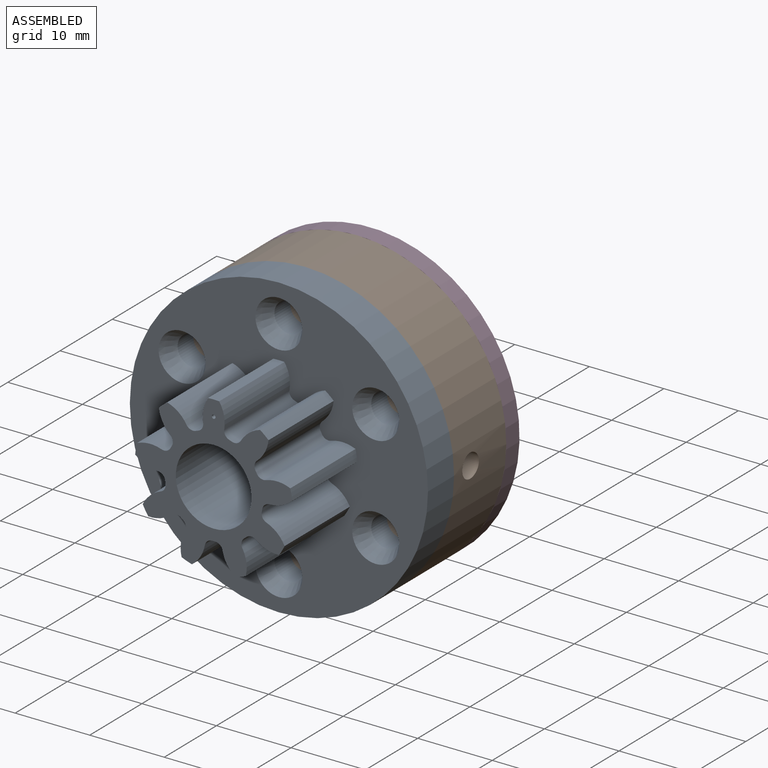
[diagram: assembled view]
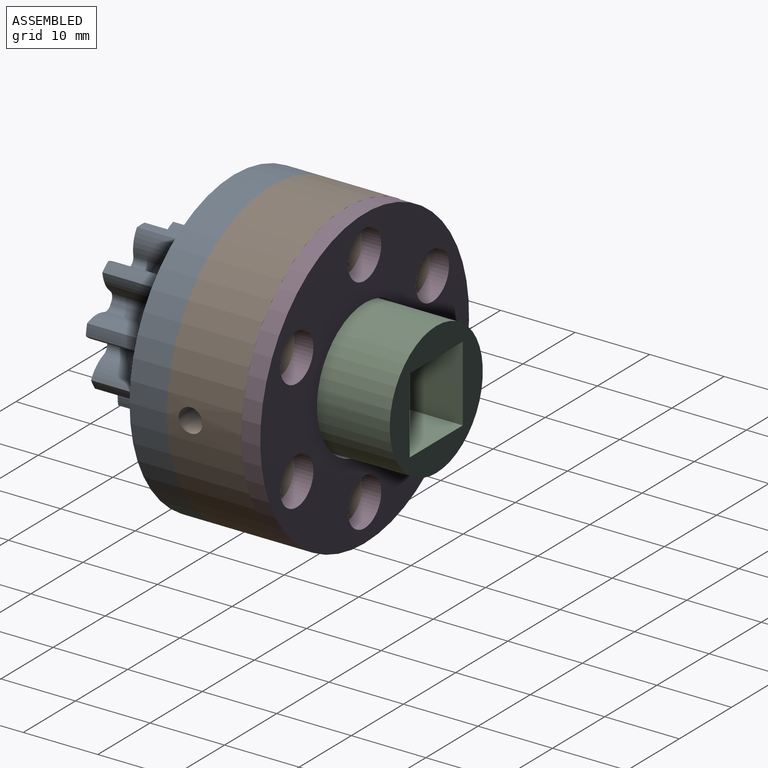
[diagram: assembled view, second angle]
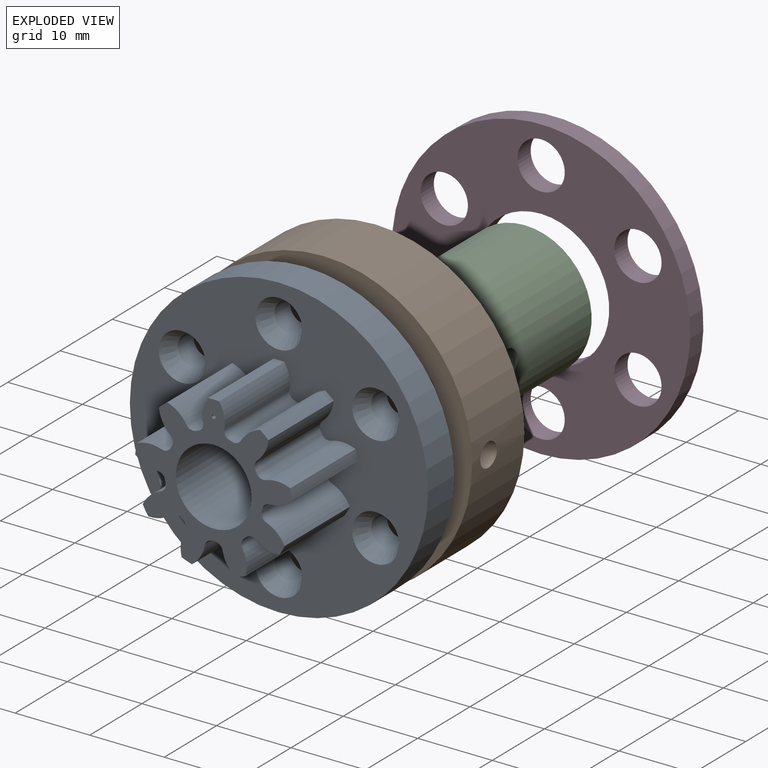
[diagram: exploded view]
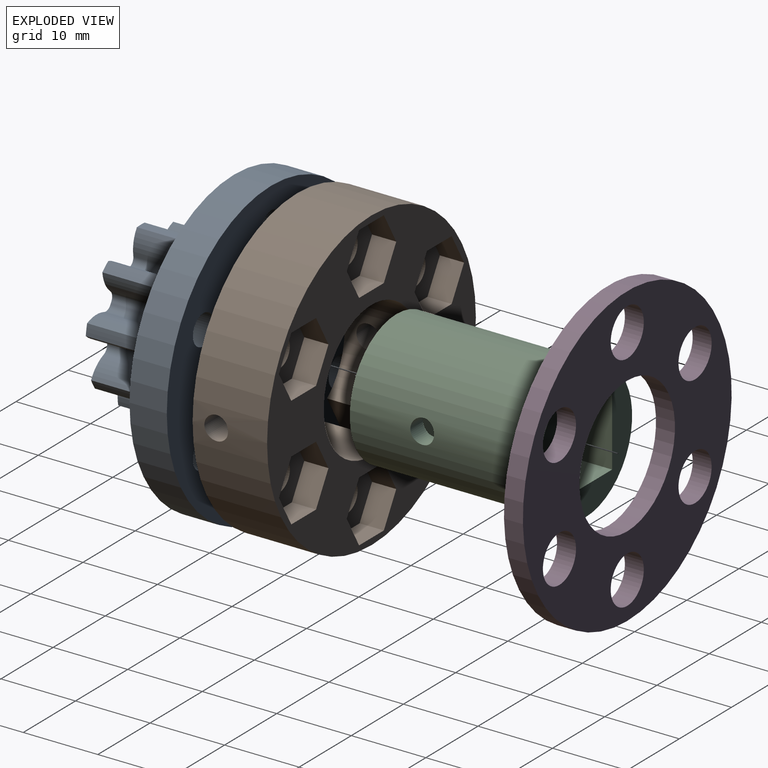
[diagram: exploded view, second angle]
ASSEMBLY  parts=4 mates=3
PART A: 75 faces, bbox 40x17.5x40 mm
  f0: cylinder r=5.08mm len=14.25mm, axis (0,-1,0), area 454.8mm2, adj f11,f73
  f1: plane 40x40mm, normal (0,1,0), area 918.6mm2, adj f60,f61,f63,f65,f67,f69,f71,f74
  f2: cylinder r=6.59mm len=12.5mm, axis (0,1,0), area 4.3mm2, adj f11,f16,f55,f59
  f3: cylinder r=6.59mm len=12.5mm, axis (0,1,0), area 4.3mm2, adj f11,f50,f56,f59
  f4: cylinder r=6.59mm len=12.5mm, axis (0,1,0), area 4.3mm2, adj f11,f45,f51,f59
  f5: cylinder r=6.59mm len=12.5mm, axis (0,1,0), area 4.3mm2, adj f11,f40,f46,f59
  f6: cylinder r=6.59mm len=12.5mm, axis (0,1,0), area 4.3mm2, adj f11,f35,f41,f59
  f7: cylinder r=6.59mm len=12.5mm, axis (0,1,0), area 4.3mm2, adj f11,f30,f36,f59
  f8: cylinder r=6.59mm len=12.5mm, axis (0,1,0), area 4.3mm2, adj f11,f25,f31,f59
  f9: cylinder r=6.59mm len=12.5mm, axis (0,1,0), area 4.3mm2, adj f11,f20,f26,f59
  f10: cylinder r=6.59mm len=12.5mm, axis (0,1,0), area 4.3mm2, adj f11,f15,f21,f59
  f11: plane 21.06x20.77mm, normal (0,-1,0), area 152.8mm2, adj f0,f2,f3,f4,f5,f6,f7,f8
  f12: cylinder r=4.44mm len=12.5mm, axis (0,1,0), area 41.9mm2, adj f11,f13,f16,f59
  f13: cylinder r=10.59mm len=12.5mm, axis (0,1,0), area 18.5mm2, adj f11,f12,f14,f59
  f14: cylinder r=4.44mm len=12.5mm, axis (0,1,0), area 41.9mm2, adj f11,f13,f15,f59
  f15: cylinder r=1mm len=12.5mm, axis (0,1,0), area 17.7mm2, adj f10,f11,f14,f59
  f16: cylinder r=1mm len=12.5mm, axis (0,1,0), area 17.7mm2, adj f2,f11,f12,f59
  f17: cylinder r=4.44mm len=12.5mm, axis (0,1,0), area 41.9mm2, adj f11,f18,f21,f59
  f18: cylinder r=10.59mm len=12.5mm, axis (0,1,0), area 18.5mm2, adj f11,f17,f19,f59
  f19: cylinder r=4.44mm len=12.5mm, axis (0,1,0), area 41.9mm2, adj f11,f18,f20,f59
  f20: cylinder r=1mm len=12.5mm, axis (0,1,0), area 17.7mm2, adj f9,f11,f19,f59
  f21: cylinder r=1mm len=12.5mm, axis (0,1,0), area 17.7mm2, adj f10,f11,f17,f59
  f22: cylinder r=4.44mm len=12.5mm, axis (0,1,0), area 41.9mm2, adj f11,f23,f26,f59
  f23: cylinder r=10.59mm len=12.5mm, axis (0,1,0), area 18.5mm2, adj f11,f22,f24,f59
  f24: cylinder r=4.44mm len=12.5mm, axis (0,1,0), area 41.9mm2, adj f11,f23,f25,f59
  f25: cylinder r=1mm len=12.5mm, axis (0,1,0), area 17.7mm2, adj f8,f11,f24,f59
  f26: cylinder r=1mm len=12.5mm, axis (0,1,0), area 17.7mm2, adj f9,f11,f22,f59
  f27: cylinder r=4.44mm len=12.5mm, axis (0,1,0), area 41.9mm2, adj f11,f28,f31,f59
  f28: cylinder r=10.59mm len=12.5mm, axis (0,1,0), area 18.5mm2, adj f11,f27,f29,f59
  f29: cylinder r=4.44mm len=12.5mm, axis (0,1,0), area 41.9mm2, adj f11,f28,f30,f59
  f30: cylinder r=1mm len=12.5mm, axis (0,1,0), area 17.7mm2, adj f7,f11,f29,f59
  f31: cylinder r=1mm len=12.5mm, axis (0,1,0), area 17.7mm2, adj f8,f11,f27,f59
  f32: cylinder r=4.44mm len=12.5mm, axis (0,1,0), area 41.9mm2, adj f11,f33,f36,f59
  f33: cylinder r=10.59mm len=12.5mm, axis (0,1,0), area 18.5mm2, adj f11,f32,f34,f59
  f34: cylinder r=4.44mm len=12.5mm, axis (0,1,0), area 41.9mm2, adj f11,f33,f35,f59
  f35: cylinder r=1mm len=12.5mm, axis (0,1,0), area 17.7mm2, adj f6,f11,f34,f59
  f36: cylinder r=1mm len=12.5mm, axis (0,1,0), area 17.7mm2, adj f7,f11,f32,f59
  f37: cylinder r=4.44mm len=12.5mm, axis (0,1,0), area 41.9mm2, adj f11,f38,f41,f59
  f38: cylinder r=10.59mm len=12.5mm, axis (0,1,0), area 18.5mm2, adj f11,f37,f39,f59
  f39: cylinder r=4.44mm len=12.5mm, axis (0,1,0), area 41.9mm2, adj f11,f38,f40,f59
  f40: cylinder r=1mm len=12.5mm, axis (0,1,0), area 17.7mm2, adj f5,f11,f39,f59
  f41: cylinder r=1mm len=12.5mm, axis (0,1,0), area 17.7mm2, adj f6,f11,f37,f59
  f42: cylinder r=4.44mm len=12.5mm, axis (0,1,0), area 41.9mm2, adj f11,f43,f46,f59
  f43: cylinder r=10.59mm len=12.5mm, axis (0,1,0), area 18.5mm2, adj f11,f42,f44,f59
  f44: cylinder r=4.44mm len=12.5mm, axis (0,1,0), area 41.9mm2, adj f11,f43,f45,f59
  f45: cylinder r=1mm len=12.5mm, axis (0,1,0), area 17.7mm2, adj f4,f11,f44,f59
  f46: cylinder r=1mm len=12.5mm, axis (0,1,0), area 17.7mm2, adj f5,f11,f42,f59
  f47: cylinder r=4.44mm len=12.5mm, axis (0,1,0), area 41.9mm2, adj f11,f48,f51,f59
  f48: cylinder r=10.59mm len=12.5mm, axis (0,1,0), area 18.5mm2, adj f11,f47,f49,f59
  f49: cylinder r=4.44mm len=12.5mm, axis (0,1,0), area 41.9mm2, adj f11,f48,f50,f59
  f50: cylinder r=1mm len=12.5mm, axis (0,1,0), area 17.7mm2, adj f3,f11,f49,f59
  f51: cylinder r=1mm len=12.5mm, axis (0,1,0), area 17.7mm2, adj f4,f11,f47,f59
  f52: cylinder r=4.44mm len=12.5mm, axis (0,1,0), area 41.9mm2, adj f11,f53,f56,f59
  f53: cylinder r=10.59mm len=12.5mm, axis (0,1,0), area 18.5mm2, adj f11,f52,f54,f59
  f54: cylinder r=4.44mm len=12.5mm, axis (0,1,0), area 41.9mm2, adj f11,f53,f55,f59
  f55: cylinder r=1mm len=12.5mm, axis (0,1,0), area 17.7mm2, adj f2,f11,f54,f59
  f56: cylinder r=1mm len=12.5mm, axis (0,1,0), area 17.7mm2, adj f3,f11,f52,f59
  f57: cylinder r=0.25mm len=12.5mm, axis (0,-1,0), area 19.6mm2, adj f11,f58
  f58: plane 0.5x0.5mm, normal (0,-1,0), area 0.2mm2, adj f57
  f59: plane 40x40mm, normal (0,-1,0), area 835mm2, adj f2,f3,f4,f5,f6,f7,f8,f9
  f60: cylinder r=20mm len=40mm, axis (0,-1,0), area 628.3mm2, adj f1,f59
  f61: cylinder r=2mm len=4mm, axis (0,-1,0), area 37.7mm2, adj f1,f62
  f62: cone r=2mm half-angle=30deg, axis (0,-1,0), area 37.4mm2, adj f59,f61
  f63: cylinder r=2mm len=4mm, axis (0,-1,0), area 37.7mm2, adj f1,f64
  f64: cone r=2mm half-angle=30deg, axis (0,-1,0), area 37.4mm2, adj f59,f63
  f65: cylinder r=2mm len=4mm, axis (0,-1,0), area 37.7mm2, adj f1,f66
  f66: cone r=2mm half-angle=30deg, axis (0,-1,0), area 37.4mm2, adj f59,f65
  f67: cylinder r=2mm len=4mm, axis (0,-1,0), area 37.7mm2, adj f1,f68
  f68: cone r=2mm half-angle=30deg, axis (0,-1,0), area 37.4mm2, adj f59,f67
  f69: cylinder r=2mm len=4mm, axis (0,-1,0), area 37.7mm2, adj f1,f70
  f70: cone r=2mm half-angle=30deg, axis (0,-1,0), area 37.4mm2, adj f59,f69
  f71: cylinder r=2mm len=4mm, axis (0,-1,0), area 37.7mm2, adj f1,f72
  f72: cone r=2mm half-angle=30deg, axis (0,-1,0), area 37.4mm2, adj f59,f71
  f73: plane 18.29x18.29mm, normal (0,1,0), area 181.6mm2, adj f0,f74
  f74: cylinder r=9.14mm len=18.29mm, axis (0,1,0), area 186.7mm2, adj f1,f73
PART B: 62 faces, bbox 40x10x40 mm
  f0: plane 40x40mm, normal (0,1,0), area 879mm2, adj f2,f3,f4,f5,f6,f7,f8,f51
  f1: plane 40x40mm, normal (0,-1,0), area 642.2mm2, adj f8,f10,f11,f12,f13,f14,f15,f17
  f2: cylinder r=2mm len=6.75mm, axis (0,-1,0), area 84.8mm2, adj f0,f44
  f3: cylinder r=2mm len=6.75mm, axis (0,-1,0), area 84.8mm2, adj f0,f37
  f4: cylinder r=2mm len=6.75mm, axis (0,-1,0), area 84.8mm2, adj f0,f30
  f5: cylinder r=2mm len=6.75mm, axis (0,-1,0), area 84.8mm2, adj f0,f23
  f6: cylinder r=2mm len=6.75mm, axis (0,-1,0), area 84.8mm2, adj f0,f16
  f7: cylinder r=2mm len=6.75mm, axis (0,-1,0), area 84.8mm2, adj f0,f9
  f8: cylinder r=20mm len=40mm, axis (0,1,0), area 1240.8mm2, adj f0,f1,f60,f61
  f9: plane 9.5x8.23mm, normal (0,-1,0), area 46.1mm2, adj f7,f10,f11,f12,f13,f14,f15
  f10: plane 4.75x3.25mm, normal (0,0,-1), area 15.4mm2, adj f1,f9,f11,f15
  f11: plane 4.11x3.25mm, normal (0.87,0,-0.5), area 15.4mm2, adj f1,f9,f10,f12
  f12: plane 4.11x3.25mm, normal (0.87,0,0.5), area 15.4mm2, adj f1,f9,f11,f13
  f13: plane 4.75x3.25mm, normal (0,0,1), area 15.4mm2, adj f1,f9,f12,f14
  f14: plane 4.11x3.25mm, normal (-0.87,0,0.5), area 15.4mm2, adj f1,f9,f13,f15
  f15: plane 4.11x3.25mm, normal (-0.87,0,-0.5), area 15.4mm2, adj f1,f9,f10,f14
  f16: plane 9.5x8.23mm, normal (0,-1,0), area 46.1mm2, adj f6,f17,f18,f19,f20,f21,f22
  f17: plane 4.11x3.25mm, normal (0.87,0,-0.5), area 15.4mm2, adj f1,f16,f18,f22
  f18: plane 4.11x3.25mm, normal (0.87,0,0.5), area 15.4mm2, adj f1,f16,f17,f19
  f19: plane 4.75x3.25mm, normal (0,0,1), area 15.4mm2, adj f1,f16,f18,f20
  f20: plane 4.11x3.25mm, normal (-0.87,0,0.5), area 15.4mm2, adj f1,f16,f19,f21
  f21: plane 4.11x3.25mm, normal (-0.87,0,-0.5), area 15.4mm2, adj f1,f16,f20,f22
  f22: plane 4.75x3.25mm, normal (0,0,-1), area 15.4mm2, adj f1,f16,f17,f21
  f23: plane 9.5x8.23mm, normal (0,-1,0), area 46.1mm2, adj f5,f24,f25,f26,f27,f28,f29
  f24: plane 4.11x3.25mm, normal (0.87,0,0.5), area 15.4mm2, adj f1,f23,f25,f29
  f25: plane 4.75x3.25mm, normal (0,0,1), area 15.4mm2, adj f1,f23,f24,f26
  f26: plane 4.11x3.25mm, normal (-0.87,0,0.5), area 15.4mm2, adj f1,f23,f25,f27
  f27: plane 4.11x3.25mm, normal (-0.87,0,-0.5), area 15.4mm2, adj f1,f23,f26,f28
  f28: plane 4.75x3.25mm, normal (0,0,-1), area 15.4mm2, adj f1,f23,f27,f29
  f29: plane 4.11x3.25mm, normal (0.87,0,-0.5), area 15.4mm2, adj f1,f23,f24,f28
  f30: plane 9.5x8.23mm, normal (0,-1,0), area 46.1mm2, adj f4,f31,f32,f33,f34,f35,f36
  f31: plane 4.75x3.25mm, normal (0,0,1), area 15.4mm2, adj f1,f30,f32,f36
  f32: plane 4.11x3.25mm, normal (-0.87,0,0.5), area 15.4mm2, adj f1,f30,f31,f33
  f33: plane 4.11x3.25mm, normal (-0.87,0,-0.5), area 15.4mm2, adj f1,f30,f32,f34
  f34: plane 4.75x3.25mm, normal (0,0,-1), area 15.4mm2, adj f1,f30,f33,f35
  f35: plane 4.11x3.25mm, normal (0.87,0,-0.5), area 15.4mm2, adj f1,f30,f34,f36
  f36: plane 4.11x3.25mm, normal (0.87,0,0.5), area 15.4mm2, adj f1,f30,f31,f35
  f37: plane 9.5x8.23mm, normal (0,-1,0), area 46.1mm2, adj f3,f38,f39,f40,f41,f42,f43
  f38: plane 4.11x3.25mm, normal (-0.87,0,0.5), area 15.4mm2, adj f1,f37,f39,f43
  f39: plane 4.11x3.25mm, normal (-0.87,0,-0.5), area 15.4mm2, adj f1,f37,f38,f40
  f40: plane 4.75x3.25mm, normal (0,0,-1), area 15.4mm2, adj f1,f37,f39,f41
  f41: plane 4.11x3.25mm, normal (0.87,0,-0.5), area 15.4mm2, adj f1,f37,f40,f42
  f42: plane 4.11x3.25mm, normal (0.87,0,0.5), area 15.4mm2, adj f1,f37,f41,f43
  f43: plane 4.75x3.25mm, normal (0,0,1), area 15.4mm2, adj f1,f37,f38,f42
  f44: plane 9.5x8.23mm, normal (0,-1,0), area 46.1mm2, adj f2,f45,f46,f47,f48,f49,f50
  f45: plane 4.11x3.25mm, normal (-0.87,0,-0.5), area 15.4mm2, adj f1,f44,f46,f50
  f46: plane 4.75x3.25mm, normal (0,0,-1), area 15.4mm2, adj f1,f44,f45,f47
  f47: plane 4.11x3.25mm, normal (0.87,0,-0.5), area 15.4mm2, adj f1,f44,f46,f48
  f48: plane 4.11x3.25mm, normal (0.87,0,0.5), area 15.4mm2, adj f1,f44,f47,f49
  f49: plane 4.75x3.25mm, normal (0,0,1), area 15.4mm2, adj f1,f44,f48,f50
  f50: plane 4.11x3.25mm, normal (-0.87,0,0.5), area 15.4mm2, adj f1,f44,f45,f49
  f51: cylinder r=9.14mm len=18.29mm, axis (0,1,0), area 510.9mm2, adj f0,f1,f52,f53,f54,f56,f57,f58
  f52: plane 7.39x5.95mm, normal (0,1,0), area 19.8mm2, adj f51,f53,f54,f55
  f53: plane 8.13x5.93mm, normal (0.87,0,0.5), area 55.7mm2, adj f0,f51,f52,f55
  f54: plane 8.13x5.93mm, normal (-0.87,0,-0.5), area 55.7mm2, adj f0,f51,f52,f55
  f55: plane 8.13x2.53mm, normal (-0.5,0,0.87), area 23.7mm2, adj f0,f52,f53,f54
  f56: plane 8.13x5.93mm, normal (-0.87,0,-0.5), area 55.7mm2, adj f0,f51,f58,f59
  f57: plane 8.13x5.93mm, normal (0.87,0,0.5), area 55.7mm2, adj f0,f51,f58,f59
  f58: plane 7.39x5.95mm, normal (0,1,0), area 19.8mm2, adj f51,f56,f57,f59
  f59: plane 8.13x2.53mm, normal (0.5,0,-0.87), area 23.7mm2, adj f0,f56,f57,f58
  f60: cylinder r=1.59mm len=11mm, axis (1,0,0), area 108.7mm2, adj f8,f51
  f61: cylinder r=1.59mm len=11mm, axis (1,0,0), area 108.7mm2, adj f8,f51
PART C: 18 faces, bbox 17.8x17.8x25.4 mm
  f0: plane 17.83x17.83mm, normal (0,0,-1), area 104.4mm2, adj f3,f10,f11,f12,f13,f14,f15
  f1: cylinder r=3.68mm len=7.37mm, axis (0,0,1), area 69.9mm2, adj f8,f9
  f2: plane 17.83x17.83mm, normal (0,0,1), area 146.5mm2, adj f3,f4,f5,f6,f7
  f3: cylinder r=8.92mm len=25.4mm, axis (0,0,-1), area 1406.9mm2, adj f0,f2,f16,f17
  f4: plane 10.77x10.16mm, normal (0,-1,0), area 109.4mm2, adj f2,f5,f7,f8
  f5: plane 10.77x10.16mm, normal (1,0,0), area 109.4mm2, adj f2,f4,f6,f8
  f6: plane 10.77x10.16mm, normal (0,1,0), area 109.4mm2, adj f2,f5,f7,f8
  f7: plane 10.77x10.16mm, normal (-1,0,0), area 109.4mm2, adj f2,f4,f6,f8
  f8: plane 10.16x10.16mm, normal (0,0,1), area 60.6mm2, adj f1,f4,f5,f6,f7
  f9: plane 14.96x12.95mm, normal (0,0,-1), area 102.7mm2, adj f1,f10,f11,f12,f13,f14,f15
  f10: plane 11.61x7.48mm, normal (0,1,0), area 78.9mm2, adj f0,f9,f11,f15,f17
  f11: plane 11.61x6.48mm, normal (0.87,0.5,0), area 86.8mm2, adj f0,f9,f10,f12
  f12: plane 11.61x6.48mm, normal (0.87,-0.5,0), area 86.8mm2, adj f0,f9,f11,f13
  f13: plane 11.61x7.48mm, normal (0,-1,0), area 78.9mm2, adj f0,f9,f12,f14,f16
  f14: plane 11.61x6.48mm, normal (-0.87,-0.5,0), area 86.8mm2, adj f0,f9,f13,f15
  f15: plane 11.61x6.48mm, normal (-0.87,0.5,0), area 86.8mm2, adj f0,f9,f10,f14
  f16: cylinder r=1.59mm len=3.18mm, axis (0,1,0), area 23.4mm2, adj f3,f13
  f17: cylinder r=1.59mm len=3.18mm, axis (0,1,0), area 23.4mm2, adj f3,f10
PART D: 10 faces, bbox 40x2.5x40 mm
  f0: cylinder r=20mm len=40mm, axis (0,1,0), area 319.2mm2, adj f1,f2
  f1: plane 40x40mm, normal (0,-1,0), area 803.9mm2, adj f0,f3,f4,f5,f6,f7,f8,f9
  f2: plane 40x40mm, normal (0,1,0), area 803.9mm2, adj f0,f3,f4,f5,f6,f7,f8,f9
  f3: cylinder r=9.14mm len=18.29mm, axis (0,1,0), area 145.9mm2, adj f1,f2
  f4: cylinder r=3.17mm len=6.35mm, axis (0,-1,0), area 50.7mm2, adj f1,f2
  f5: cylinder r=3.17mm len=6.35mm, axis (0,-1,0), area 50.7mm2, adj f1,f2
  f6: cylinder r=3.17mm len=6.35mm, axis (0,-1,0), area 50.7mm2, adj f1,f2
  f7: cylinder r=3.17mm len=6.35mm, axis (0,-1,0), area 50.7mm2, adj f1,f2
  f8: cylinder r=3.17mm len=6.35mm, axis (0,-1,0), area 50.7mm2, adj f1,f2
  f9: cylinder r=3.17mm len=6.35mm, axis (0,-1,0), area 50.7mm2, adj f1,f2
PLACE A at identity fixed
PLACE B rot(axis=(0,0,1),180deg) t=(0,11.25,0)mm
PLACE C rot(axis=(-0.58,0.58,0.58),120deg) t=(0,8,0)mm
PLACE D t=(0,23.79,0)mm
MATE fastened A.f0 <-> C.f1  axis (0,-1,0) through (0,8,0)mm
MATE fastened D.f0 <-> B.f8  axis (0,-1,0) through (0,21.25,0)mm
MATE fastened A.f0 <-> B.f8  axis (0,-1,0) through (0,11.25,0)mm
